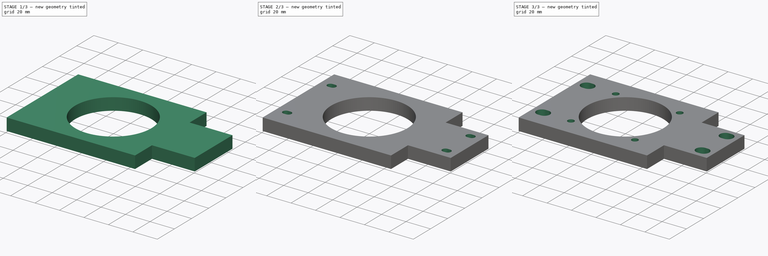
[diagram: build sequence overview — one tinted view per stage of 3, left to right]
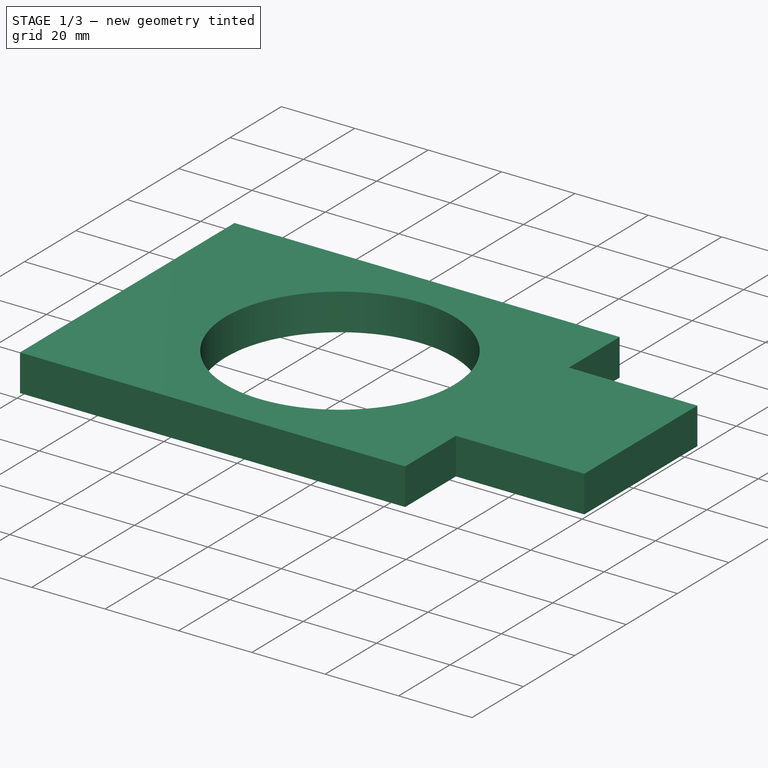
[diagram: stage 1 of 3 — iso view after this stage's code; geometry added in this stage tinted green]
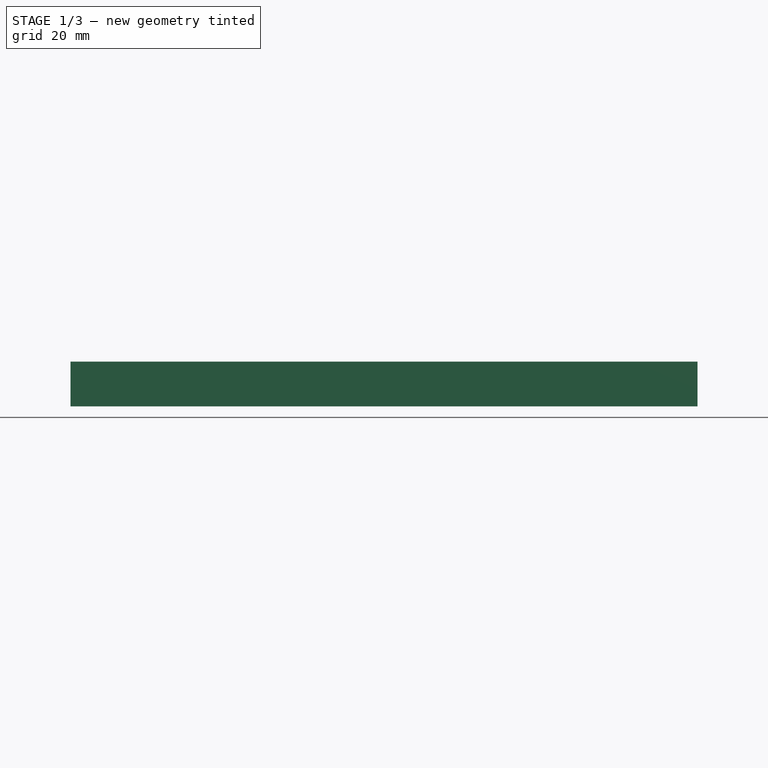
[diagram: stage 1 of 3 — front view after this stage's code; geometry added in this stage tinted green]
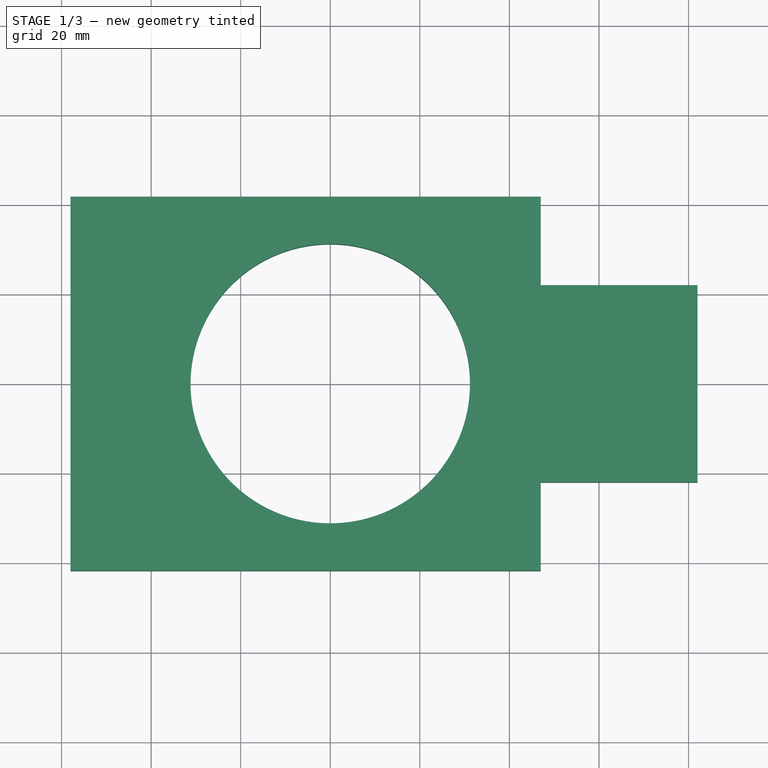
[diagram: stage 1 of 3 — top view after this stage's code; geometry added in this stage tinted green]
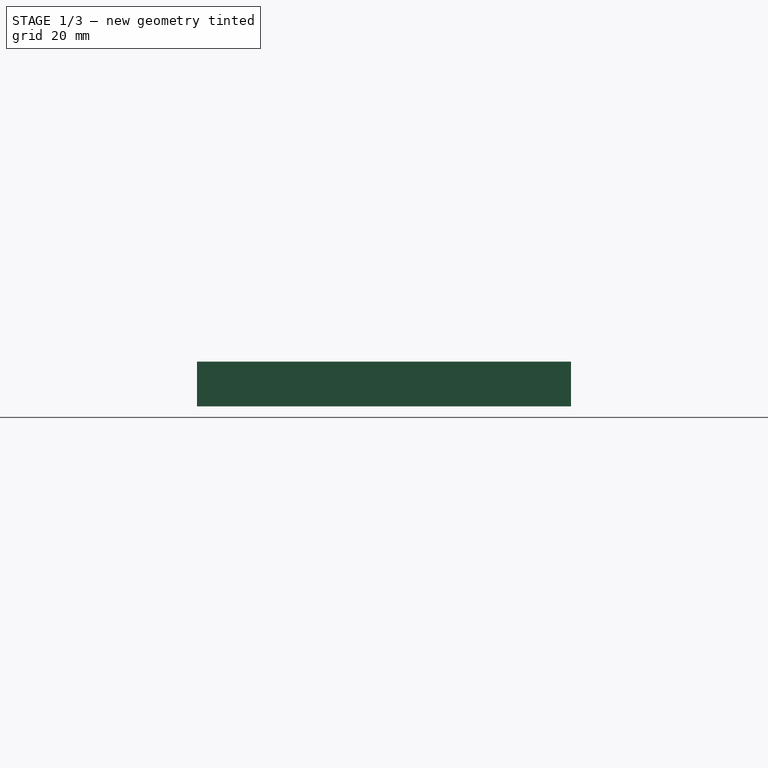
[diagram: stage 1 of 3 — right view after this stage's code; geometry added in this stage tinted green]
FCSTD DOCUMENT  (FreeCAD 0.16R4928 (Git))
Label: axis_side_sensor_holder
License: CC-BY 3.0
LicenseURL: http://creativecommons.org/licenses/by/3.0/
objects: Sketcher::SketchObject×8, PartDesign::Pocket×6, PartDesign::Fillet×4, PartDesign::Pad×2
note: 28 computed .brp shape members not serialized (recipe doc carries the construction recipe); baked Part::Feature solids carry a one-line shape summary decoded from their .brp

FEATURE [Sketcher::SketchObject] Sketch003
  sketch-geometry (16):
    g0: Circle [constr] CenterX=0 CenterY=0 CenterZ=0 NormalX=0 NormalY=0 NormalZ=1 Radius=37.5
    g1: Circle [constr] CenterX=0 CenterY=0 CenterZ=0 NormalX=0 NormalY=0 NormalZ=1 Radius=41.75
    g2: LineSegment [constr] StartX=37.5 StartY=-18 StartZ=0 EndX=37.5 EndY=18 EndZ=0
    g3: LineSegment [constr] StartX=37.5 StartY=18 StartZ=0 EndX=57 EndY=18 EndZ=0
    g4: LineSegment [constr] StartX=57 StartY=18 StartZ=0 EndX=57 EndY=-18 EndZ=0
    g5: LineSegment [constr] StartX=37.5 StartY=-18 StartZ=0 EndX=57 EndY=-18 EndZ=0
    g6: LineSegment StartX=-58 StartY=41.75 StartZ=0 EndX=47 EndY=41.75 EndZ=0
    g7: LineSegment StartX=47 StartY=-41.75 StartZ=0 EndX=-58 EndY=-41.75 EndZ=0
    g8: LineSegment StartX=-58 StartY=-41.75 StartZ=0 EndX=-58 EndY=41.75 EndZ=0
    g9: LineSegment StartX=82 StartY=22 StartZ=0 EndX=82 EndY=-22 EndZ=0
    g10: LineSegment [constr] StartX=47.25 StartY=18 StartZ=0 EndX=47.25 EndY=-18 EndZ=0
    g11: Circle [constr] CenterX=0 CenterY=0 CenterZ=0 NormalX=0 NormalY=0 NormalZ=1 Radius=31.2
    g12: LineSegment StartX=47 StartY=41.75 StartZ=0 EndX=47 EndY=22 EndZ=0
    g13: LineSegment StartX=47 StartY=22 StartZ=0 EndX=82 EndY=22 EndZ=0
    g14: LineSegment StartX=47 StartY=-41.75 StartZ=0 EndX=47 EndY=-22 EndZ=0
    g15: LineSegment StartX=47 StartY=-22 StartZ=0 EndX=82 EndY=-22 EndZ=0
  constraints (45):
    c: Coincident(g0,g-1)
    c: Radius(g0) = 37.5
    c: Coincident(g1,g-1)
    c: Radius(g1) = 41.75
    c: Coincident(g2,g3)
    c: Coincident(g3,g4)
    c: Perpendicular(g3,g2)
    c: Perpendicular(g3,g4)
    c: Coincident(g5,g2)
    c: Perpendicular(g5,g2)
    c: Coincident(g5,g4)
    c: Distance(g4) = 36
    c: Coincident(g7,g8)
    c: Coincident(g8,g6)
    c: Horizontal(g6)
    c: Horizontal(g7)
    c: Vertical(g8)
    c: Tangent(g7,g1)
    c: Tangent(g6,g1)
    c: Vertical(g9)
    c: DistanceX(g3) = 19.5
    c: PointOnObject(g10,g3)
    c: PointOnObject(g10,g5)
    c: Vertical(g10)
    c: Symmetric(g2,g3,g10)
    c: DistanceX(g-1,g10) = 47.25
    c: Symmetric(g3,g4,g-1)
    c: DistanceX(g-1,g6) = -58
    c: Coincident(g11,g-1)
    c: Radius(g11) = 31.2
    c: Vertical(g12)
    c: Coincident(g13,g12)
    c: Horizontal(g13)
    c: Vertical(g14)
    c: Coincident(g15,g14)
    c: Horizontal(g15)
    c: Coincident(g9,g13)
    c: Coincident(g6,g12)
    c: Coincident(g9,g15)
    c: Coincident(g7,g14)
    c: DistanceX(g-1,g9) = 82
    c: Symmetric(g9,g9,g-1)
    c: Symmetric(g14,g12,g-1)
    c: DistanceY(g9) = -44
    c: DistanceX(g15) = 35
FEATURE [PartDesign::Pad] Pad001  label="Main Axis Side"
  Length = 10
  Length2 = 100
  Sketch = -> Sketch003
  Type = 0
FEATURE [Sketcher::SketchObject] Sketch
  Placement = pos=(0,0,10) rot=(0,0,1;0rad)
  Support = -> Pad001 [Face10]
  sketch-geometry (1):
    g0: Circle CenterX=0 CenterY=0 CenterZ=0 NormalX=0 NormalY=0 NormalZ=1 Radius=31.2
  constraints (2):
    c: Coincident(g0,g-1)
    c: Radius(g0) = 31.2
FEATURE [PartDesign::Pocket] Pocket  label="Ball Bearing Housing"
  Length = 5
  Sketch = -> Sketch
  Type = 1
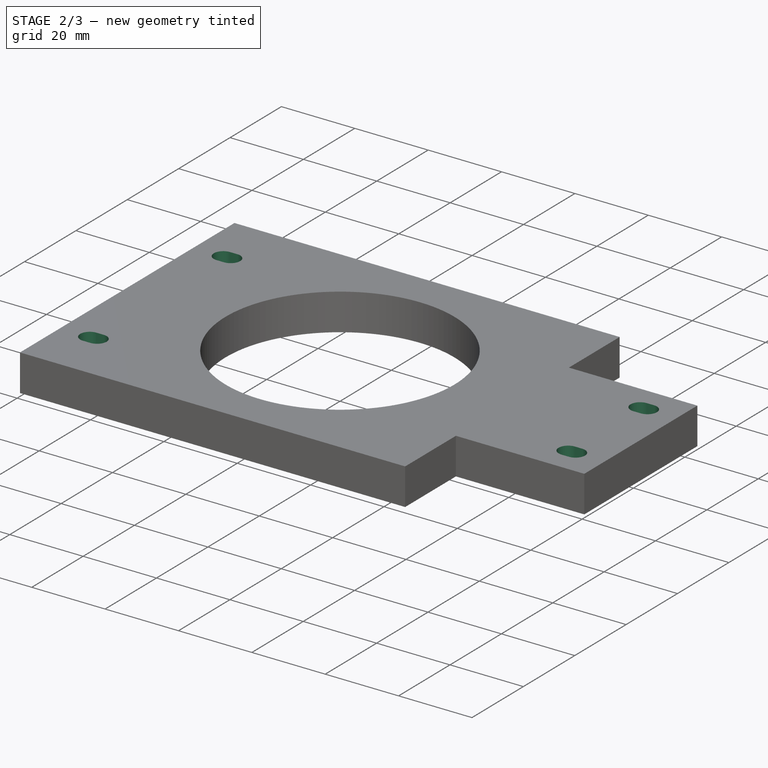
[diagram: stage 2 of 3 — iso view after this stage's code; geometry added in this stage tinted green]
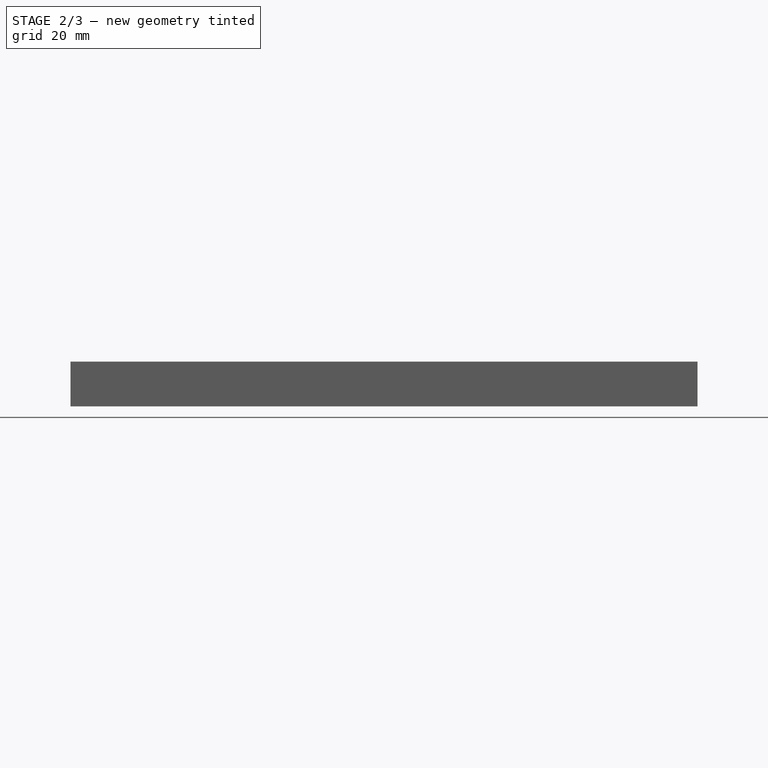
[diagram: stage 2 of 3 — front view after this stage's code; geometry added in this stage tinted green]
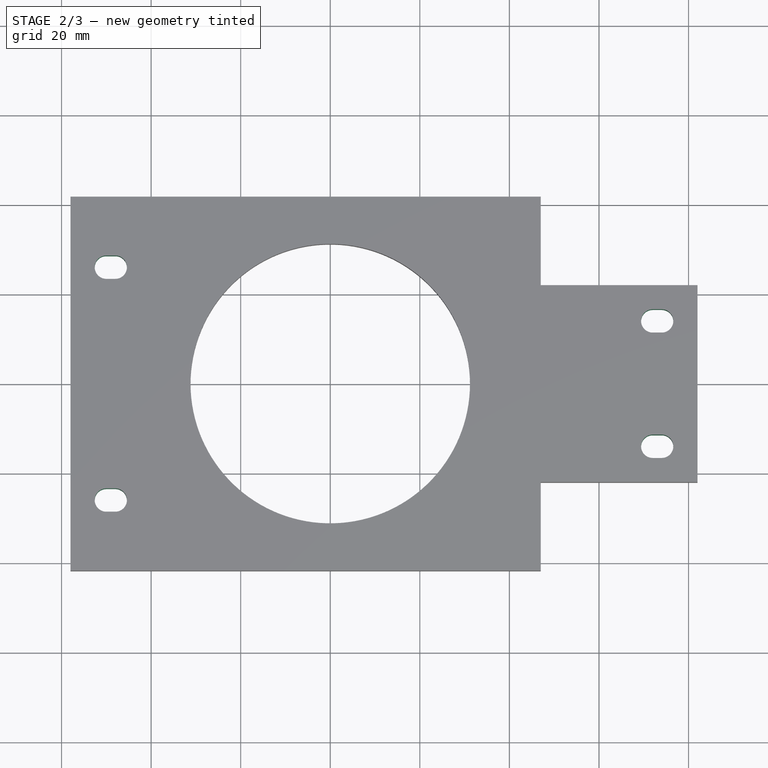
[diagram: stage 2 of 3 — top view after this stage's code; geometry added in this stage tinted green]
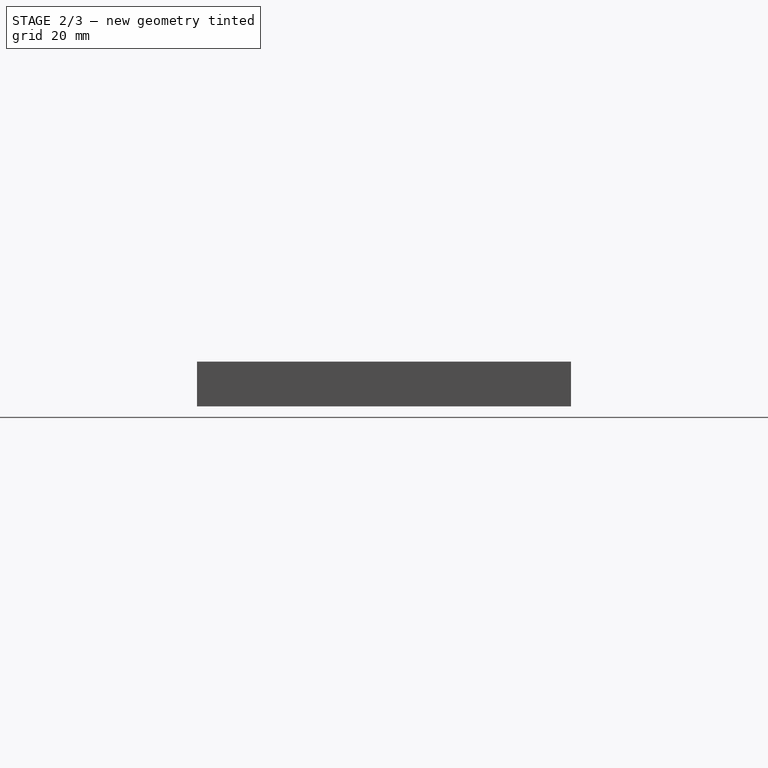
[diagram: stage 2 of 3 — right view after this stage's code; geometry added in this stage tinted green]
FEATURE [Sketcher::SketchObject] Sketch040
  ExternalGeometry = -> [Pocket]
  Placement = pos=(0,0,10) rot=(0,0,1;0rad)
  Support = -> Pocket [Face5]
  sketch-geometry (16):
    g0: ArcOfCircle CenterX=-50 CenterY=-26 CenterZ=0 NormalX=0 NormalY=0 NormalZ=1 Radius=2.6 StartAngle=1.5708 EndAngle=4.71239
    g1: ArcOfCircle CenterX=-48 CenterY=-26 CenterZ=0 NormalX=0 NormalY=0 NormalZ=1 Radius=2.6 StartAngle=4.71239 EndAngle=7.85398
    g2: LineSegment StartX=-50 StartY=-28.6 StartZ=0 EndX=-48 EndY=-28.6 EndZ=0
    g3: LineSegment StartX=-50 StartY=-23.4 StartZ=0 EndX=-48 EndY=-23.4 EndZ=0
    g4: ArcOfCircle CenterX=-50 CenterY=26 CenterZ=0 NormalX=0 NormalY=0 NormalZ=1 Radius=2.6 StartAngle=1.5708 EndAngle=4.71239
    g5: ArcOfCircle CenterX=-48 CenterY=26 CenterZ=0 NormalX=0 NormalY=0 NormalZ=1 Radius=2.6 StartAngle=4.71239 EndAngle=7.85398
    g6: LineSegment StartX=-50 StartY=23.4 StartZ=0 EndX=-48 EndY=23.4 EndZ=0
    g7: LineSegment StartX=-50 StartY=28.6 StartZ=0 EndX=-48 EndY=28.6 EndZ=0
    g8: ArcOfCircle CenterX=74 CenterY=14 CenterZ=0 NormalX=0 NormalY=0 NormalZ=1 Radius=2.6 StartAngle=4.71239 EndAngle=7.85398
    g9: ArcOfCircle CenterX=72 CenterY=14 CenterZ=0 NormalX=0 NormalY=0 NormalZ=1 Radius=2.6 StartAngle=1.5708 EndAngle=4.71239
    g10: LineSegment StartX=74 StartY=16.6 StartZ=0 EndX=72 EndY=16.6 EndZ=0
    g11: LineSegment StartX=74 StartY=11.4 StartZ=0 EndX=72 EndY=11.4 EndZ=0
    g12: ArcOfCircle CenterX=74 CenterY=-14 CenterZ=0 NormalX=0 NormalY=0 NormalZ=1 Radius=2.6 StartAngle=4.71239 EndAngle=7.85398
    g13: ArcOfCircle CenterX=72 CenterY=-14 CenterZ=0 NormalX=0 NormalY=0 NormalZ=1 Radius=2.6 StartAngle=1.5708 EndAngle=4.71239
    g14: LineSegment StartX=74 StartY=-11.4 StartZ=0 EndX=72 EndY=-11.4 EndZ=0
    g15: LineSegment StartX=74 StartY=-16.6 StartZ=0 EndX=72 EndY=-16.6 EndZ=0
  constraints (38):
    c: Tangent(g0,g3) = 1.5708
    c: Tangent(g0,g2) = -1.5708
    c: Tangent(g2,g1) = -1.5708
    c: Tangent(g3,g1) = 1.5708
    c: Horizontal(g2)
    c: Equal(g0,g1)
    c: Radius(g1) = 2.6
    c: Tangent(g4,g7) = 1.5708
    c: Tangent(g4,g6) = -1.5708
    c: Tangent(g6,g5) = -1.5708
    c: Tangent(g7,g5) = 1.5708
    c: Horizontal(g6)
    c: Equal(g4,g5)
    c: Equal(g4,g1)
    c: DistanceX(g4,g5) = 2
    c: Symmetric(g5,g1,g-1)
    c: DistanceY(g-1,g4) = 26
    c: Tangent(g8,g11) = 1.5708
    c: Tangent(g8,g10) = -1.5708
    c: Tangent(g10,g9) = -1.5708
    c: Tangent(g11,g9) = 1.5708
    c: Horizontal(g10)
    c: Equal(g8,g9)
    c: Tangent(g12,g15) = 1.5708
    c: Tangent(g12,g14) = -1.5708
    c: Tangent(g14,g13) = -1.5708
    c: Tangent(g15,g13) = 1.5708
    c: Horizontal(g14)
    c: Equal(g12,g13)
    c: Symmetric(g8,g12,g-1)
    c: Equal(g8,g12)
    c: Equal(g12,g1)
    c: DistanceY(g-1,g8) = 14
    c: DistanceX(g9,g8) = 2
    c: Symmetric(g13,g9,g-1)
    c: Symmetric(g4,g0,g-1)
    c: DistanceX(g5,g-4) = -10
    c: DistanceX(g8,g-3) = 8
FEATURE [PartDesign::Pocket] Pocket001  label="M5Holes"
  Length = 5
  Sketch = -> Sketch040
  Type = 1
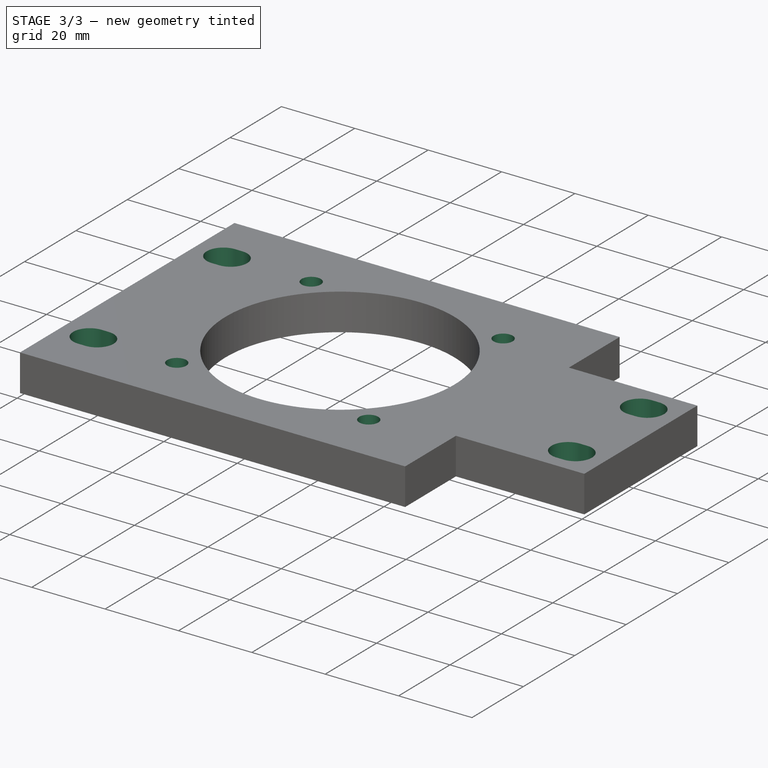
[diagram: stage 3 of 3 — iso view after this stage's code; geometry added in this stage tinted green]
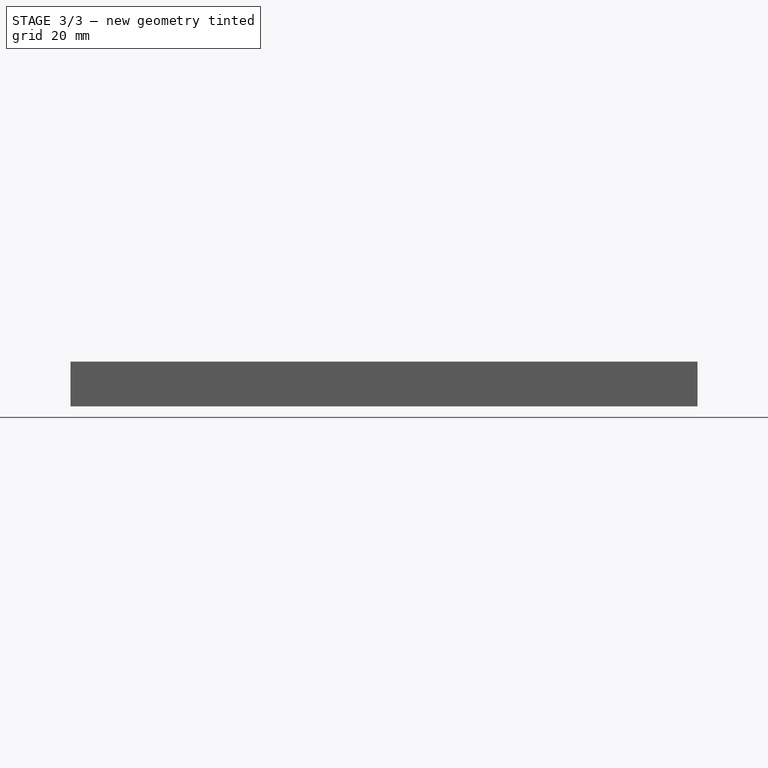
[diagram: stage 3 of 3 — front view after this stage's code; geometry added in this stage tinted green]
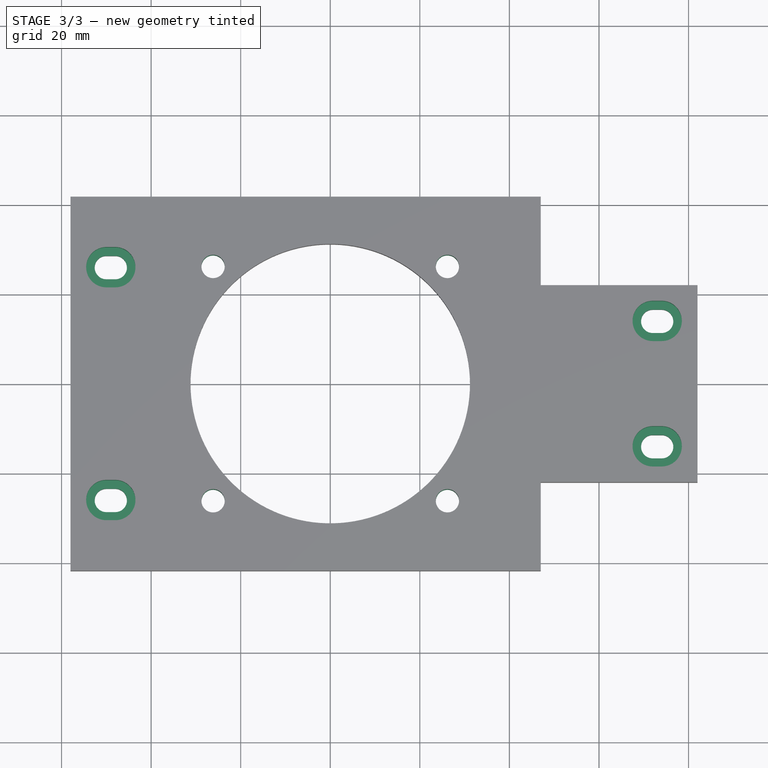
[diagram: stage 3 of 3 — top view after this stage's code; geometry added in this stage tinted green]
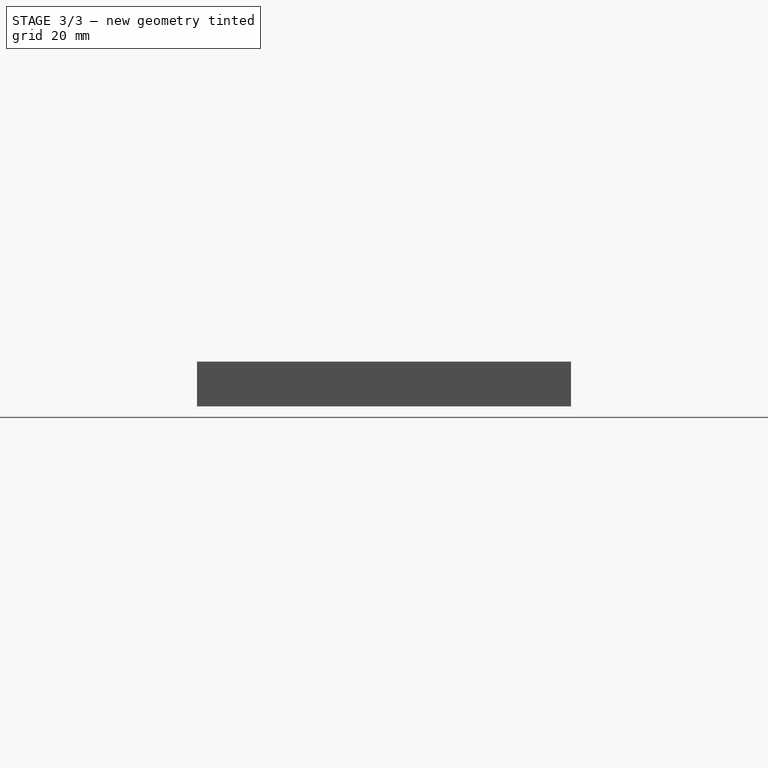
[diagram: stage 3 of 3 — right view after this stage's code; geometry added in this stage tinted green]
FEATURE [Sketcher::SketchObject] Sketch043
  Placement = pos=(0,0,10) rot=(0,0,1;0rad)
  Support = -> Pocket001 [Face5]
  sketch-geometry (5):
    g0: Circle CenterX=26.163 CenterY=-26.163 CenterZ=0 NormalX=0 NormalY=0 NormalZ=1 Radius=2.6
    g1: Circle CenterX=26.163 CenterY=26.163 CenterZ=0 NormalX=0 NormalY=0 NormalZ=1 Radius=2.6
    g2: Circle CenterX=-26.163 CenterY=26.163 CenterZ=0 NormalX=0 NormalY=0 NormalZ=1 Radius=2.6
    g3: Circle CenterX=-26.163 CenterY=-26.163 CenterZ=0 NormalX=0 NormalY=0 NormalZ=1 Radius=2.6
    g4: LineSegment [constr] StartX=0 StartY=0 StartZ=0 EndX=26.163 EndY=26.163 EndZ=0
  constraints (11):
    c: Equal(g2,g3)
    c: Equal(g3,g0)
    c: Equal(g0,g1)
    c: Radius(g1) = 2.6
    c: Coincident(g4,g-1)
    c: Coincident(g4,g1)
    c: Angle(g-1,g4) = 0.785398
    c: Symmetric(g1,g0,g-1)
    c: Symmetric(g1,g2,g-2)
    c: Distance(g4) = 37
    c: Symmetric(g2,g3,g-1)
FEATURE [PartDesign::Pocket] Pocket002  label="M5HolesBallBearingHousing"
  Length = 5
  Sketch = -> Sketch043
  Type = 1
FEATURE [Sketcher::SketchObject] Sketch044
  ExternalGeometry = -> [Pocket002]
  Placement = pos=(0,0,10) rot=(0,0,1;0rad)
  Support = -> Pocket002 [Face5]
  sketch-geometry (16):
    g0: ArcOfCircle CenterX=-48 CenterY=26 CenterZ=0 NormalX=0 NormalY=0 NormalZ=1 Radius=4.5 StartAngle=4.71239 EndAngle=7.85398
    g1: ArcOfCircle CenterX=-50 CenterY=26 CenterZ=0 NormalX=0 NormalY=0 NormalZ=1 Radius=4.5 StartAngle=1.5708 EndAngle=4.71239
    g2: LineSegment StartX=-48 StartY=30.5 StartZ=0 EndX=-50 EndY=30.5 EndZ=0
    g3: LineSegment StartX=-48 StartY=21.5 StartZ=0 EndX=-50 EndY=21.5 EndZ=0
    g4: ArcOfCircle CenterX=-50 CenterY=-26 CenterZ=0 NormalX=0 NormalY=0 NormalZ=1 Radius=4.5 StartAngle=1.5708 EndAngle=4.71239
    g5: ArcOfCircle CenterX=-48 CenterY=-26 CenterZ=0 NormalX=0 NormalY=0 NormalZ=1 Radius=4.5 StartAngle=4.71239 EndAngle=7.85398
    g6: LineSegment StartX=-50 StartY=-30.5 StartZ=0 EndX=-48 EndY=-30.5 EndZ=0
    g7: LineSegment StartX=-50 StartY=-21.5 StartZ=0 EndX=-48 EndY=-21.5 EndZ=0
    g8: ArcOfCircle CenterX=74 CenterY=14 CenterZ=0 NormalX=0 NormalY=0 NormalZ=1 Radius=4.5 StartAngle=4.71239 EndAngle=7.85398
    g9: ArcOfCircle CenterX=72 CenterY=14 CenterZ=0 NormalX=0 NormalY=0 NormalZ=1 Radius=4.5 StartAngle=1.5708 EndAngle=4.71239
    g10: LineSegment StartX=74 StartY=18.5 StartZ=0 EndX=72 EndY=18.5 EndZ=0
    g11: LineSegment StartX=74 StartY=9.5 StartZ=0 EndX=72 EndY=9.5 EndZ=0
    g12: ArcOfCircle CenterX=74 CenterY=-14 CenterZ=0 NormalX=0 NormalY=0 NormalZ=1 Radius=4.5 StartAngle=4.71239 EndAngle=7.85398
    g13: ArcOfCircle CenterX=72 CenterY=-14 CenterZ=0 NormalX=0 NormalY=0 NormalZ=1 Radius=4.5 StartAngle=1.5708 EndAngle=4.71239
    g14: LineSegment StartX=74 StartY=-9.5 StartZ=0 EndX=72 EndY=-9.5 EndZ=0
    g15: LineSegment StartX=74 StartY=-18.5 StartZ=0 EndX=72 EndY=-18.5 EndZ=0
  constraints (34):
    c: Tangent(g0,g3) = 1.5708
    c: Tangent(g0,g2) = -1.5708
    c: Tangent(g2,g1) = -1.5708
    c: Tangent(g3,g1) = 1.5708
    c: Horizontal(g2)
    c: Coincident(g0,g-3)
    c: Coincident(g1,g-4)
    c: Radius(g0) = 4.5
    c: Tangent(g4,g7) = 1.5708
    c: Tangent(g4,g6) = -1.5708
    c: Tangent(g6,g5) = -1.5708
    c: Tangent(g7,g5) = 1.5708
    c: Horizontal(g6)
    c: Equal(g4,g5)
    c: Symmetric(g5,g0,g-1)
    c: Equal(g5,g0)
    c: Symmetric(g4,g1,g-1)
    c: Tangent(g8,g11) = 1.5708
    c: Tangent(g8,g10) = -1.5708
    c: Tangent(g10,g9) = -1.5708
    c: Tangent(g11,g9) = 1.5708
    c: Horizontal(g10)
    c: Coincident(g8,g-5)
    c: Equal(g8,g0)
    c: Coincident(g9,g-6)
    c: Tangent(g12,g15) = 1.5708
    c: Tangent(g12,g14) = -1.5708
    c: Tangent(g14,g13) = -1.5708
    c: Tangent(g15,g13) = 1.5708
    c: Horizontal(g14)
    c: Equal(g12,g13)
    c: Equal(g12,g8)
    c: Symmetric(g12,g8,g-1)
    c: Symmetric(g13,g9,g-1)
FEATURE [PartDesign::Pocket] Pocket003  label="M5HolesCountersink"
  Length = 5.5
  Sketch = -> Sketch044
  Type = 0
FEATURE [Sketcher::SketchObject] Sketch045
  ExternalGeometry = -> [Fillet003]
  Placement = pos=(0,0,10) rot=(0,0,1;0rad)
  Support = -> Fillet003 [Face6]
  sketch-geometry (32):
    g0: LineSegment StartX=-21.7197 StartY=24.9724 StartZ=0 EndX=-22.9103 EndY=29.4156 EndZ=0
    g1: LineSegment StartX=-22.9103 StartY=29.4156 StartZ=0 EndX=-27.3535 EndY=30.6062 EndZ=0
    g2: LineSegment StartX=-27.3535 StartY=30.6062 StartZ=0 EndX=-30.6062 EndY=27.3535 EndZ=0
    g3: LineSegment StartX=-30.6062 StartY=27.3535 StartZ=0 EndX=-29.4156 EndY=22.9103 EndZ=0
    g4: LineSegment StartX=-29.4156 StartY=22.9103 StartZ=0 EndX=-24.9724 EndY=21.7197 EndZ=0
    g5: LineSegment StartX=-24.9724 StartY=21.7197 StartZ=0 EndX=-21.7197 EndY=24.9724 EndZ=0
    g6: LineSegment StartX=27.3535 StartY=30.6062 StartZ=0 EndX=22.9103 EndY=29.4156 EndZ=0
    g7: LineSegment StartX=22.9103 StartY=29.4156 StartZ=0 EndX=21.7197 EndY=24.9724 EndZ=0
    g8: LineSegment StartX=21.7197 StartY=24.9724 StartZ=0 EndX=24.9724 EndY=21.7197 EndZ=0
    g9: LineSegment StartX=24.9724 StartY=21.7197 StartZ=0 EndX=29.4156 EndY=22.9103 EndZ=0
    g10: LineSegment StartX=29.4156 StartY=22.9103 StartZ=0 EndX=30.6062 EndY=27.3535 EndZ=0
    g11: LineSegment StartX=30.6062 StartY=27.3535 StartZ=0 EndX=27.3535 EndY=30.6062 EndZ=0
    g12: Circle [constr] CenterX=26.163 CenterY=26.163 CenterZ=0 NormalX=0 NormalY=0 NormalZ=1 Radius=4.6
    g13: Circle [constr] CenterX=-26.163 CenterY=26.163 CenterZ=0 NormalX=0 NormalY=0 NormalZ=1 Radius=4.6
    g14: LineSegment StartX=-22.9103 StartY=-29.4156 StartZ=0 EndX=-21.7197 EndY=-24.9724 EndZ=0
    g15: LineSegment StartX=-21.7197 StartY=-24.9724 StartZ=0 EndX=-24.9724 EndY=-21.7197 EndZ=0
    g16: LineSegment StartX=-24.9724 StartY=-21.7197 StartZ=0 EndX=-29.4156 EndY=-22.9103 EndZ=0
    g17: LineSegment StartX=-29.4156 StartY=-22.9103 StartZ=0 EndX=-30.6062 EndY=-27.3535 EndZ=0
    g18: LineSegment StartX=-30.6062 StartY=-27.3535 StartZ=0 EndX=-27.3535 EndY=-30.6062 EndZ=0
    g19: LineSegment StartX=-27.3535 StartY=-30.6062 StartZ=0 EndX=-22.9103 EndY=-29.4156 EndZ=0
    g20: Circle [constr] CenterX=-26.163 CenterY=-26.163 CenterZ=0 NormalX=0 NormalY=0 NormalZ=1 Radius=4.6
    g21: LineSegment StartX=30.6062 StartY=-27.3535 StartZ=0 EndX=29.4156 EndY=-22.9103 EndZ=0
    g22: LineSegment StartX=29.4156 StartY=-22.9103 StartZ=0 EndX=24.9724 EndY=-21.7197 EndZ=0
    g23: LineSegment StartX=24.9724 StartY=-21.7197 StartZ=0 EndX=21.7197 EndY=-24.9724 EndZ=0
    g24: LineSegment StartX=21.7197 StartY=-24.9724 StartZ=0 EndX=22.9103 EndY=-29.4156 EndZ=0
    g25: LineSegment StartX=22.9103 StartY=-29.4156 StartZ=0 EndX=27.3535 EndY=-30.6062 EndZ=0
    g26: LineSegment StartX=27.3535 StartY=-30.6062 StartZ=0 EndX=30.6062 EndY=-27.3535 EndZ=0
    g27: Circle [constr] CenterX=26.163 CenterY=-26.163 CenterZ=0 NormalX=0 NormalY=0 NormalZ=1 Radius=4.6
    g28: LineSegment [constr] StartX=-26.163 StartY=26.163 StartZ=0 EndX=0 EndY=0 EndZ=0
    g29: LineSegment [constr] StartX=26.163 StartY=26.163 StartZ=0 EndX=0 EndY=0 EndZ=0
    g30: LineSegment [constr] StartX=0 StartY=0 StartZ=0 EndX=-26.163 EndY=-26.163 EndZ=0
    g31: LineSegment [constr] StartX=0 StartY=0 StartZ=0 EndX=26.163 EndY=-26.163 EndZ=0
  constraints (72):
    c: Coincident(g0,g1)
    c: Coincident(g1,g2)
    c: Coincident(g2,g3)
    c: Coincident(g3,g4)
    c: Coincident(g4,g5)
    c: Coincident(g5,g0)
    c: Equal(g0, g1-g5) x5
    c: Coincident(g6,g7)
    c: Coincident(g7,g8)
    c: Coincident(g8,g9)
    c: Coincident(g9,g10)
    c: Coincident(g10,g11)
    c: Coincident(g11,g6)
    c: Equal(g6, g7-g11) x5
    c: PointOnObject(g6,g12)
    c: PointOnObject(g7,g12)
    c: PointOnObject(g8,g12)
    c: PointOnObject(g9,g12)
    c: PointOnObject(g10,g12)
    c: PointOnObject(g11,g12)
    c: PointOnObject(g0,g13)
    c: Radius(g13) = 4.6
    c: PointOnObject(g4,g13)
    c: PointOnObject(g3,g13)
    c: PointOnObject(g2,g13)
    c: PointOnObject(g0,g13)
    c: Symmetric(g13,g12,g-2)
    c: Equal(g12,g13)
    c: Coincident(g14,g15)
    c: Coincident(g15,g16)
    c: Coincident(g16,g17)
    c: Coincident(g17,g18)
    c: Coincident(g18,g19)
    c: Coincident(g19,g14)
    c: Equal(g14, g15-g19) x5
    c: PointOnObject(g14,g20)
    c: PointOnObject(g15,g20)
    c: PointOnObject(g16,g20)
    c: PointOnObject(g17,g20)
    c: PointOnObject(g18,g20)
    c: PointOnObject(g19,g20)
    c: Equal(g20,g13)
    c: Symmetric(g20,g13,g-1)
    c: Coincident(g21,g22)
    c: Coincident(g22,g23)
    c: Coincident(g23,g24)
    c: Coincident(g24,g25)
    c: Coincident(g25,g26)
    c: Coincident(g26,g21)
    c: Equal(g21, g22-g26) x5
    c: PointOnObject(g21,g27)
    c: PointOnObject(g22,g27)
    c: PointOnObject(g23,g27)
    c: PointOnObject(g24,g27)
    c: PointOnObject(g25,g27)
    c: PointOnObject(g26,g27)
    c: Equal(g27,g13)
    c: Symmetric(g27,g12,g-1)
    c: PointOnObject(g1,g13)
    c: Coincident(g28,g13)
    c: Coincident(g28,g-1)
    c: Perpendicular(g5,g28)
    c: Coincident(g29,g12)
    c: Coincident(g29,g-1)
    c: Perpendicular(g29,g8)
    c: Coincident(g30,g-1)
    c: Coincident(g30,g20)
    c: Perpendicular(g15,g30)
    c: Coincident(g31,g-1)
    c: Coincident(g31,g27)
    c: Perpendicular(g23,g31)
    c: Coincident(g12,g-3)
FEATURE [PartDesign::Pocket] Pocket004  label="M5NutCountersink"
  Length = 4.2
  Sketch = -> Sketch045
  Type = 0
FEATURE [Sketcher::SketchObject] Sketch046
  Placement = pos=(0,0,10) rot=(0,0,1;0rad)
  Support = -> Pocket004 [Face5]
  sketch-geometry (4):
    g0: LineSegment StartX=-42 StartY=6.5 StartZ=0 EndX=-48 EndY=6.5 EndZ=0
    g1: LineSegment StartX=-48 StartY=-6.5 StartZ=0 EndX=-42 EndY=-6.5 EndZ=0
    g2: LineSegment StartX=-48 StartY=6.5 StartZ=0 EndX=-48 EndY=-6.5 EndZ=0
    g3: LineSegment StartX=-42 StartY=6.5 StartZ=0 EndX=-42 EndY=-6.5 EndZ=0
  constraints (11):
    c: Horizontal(g0)
    c: Horizontal(g1)
    c: Symmetric(g0,g1,g-1)
    c: DistanceX(g0) = -6
    c: DistanceX(g-1,g0) = -42
    c: Symmetric(g0,g1,g-1)
    c: Coincident(g2,g0)
    c: Coincident(g2,g1)
    c: Coincident(g3,g0)
    c: Coincident(g3,g1)
    c: DistanceY(g0,g1) = -13
FEATURE [PartDesign::Pad] Pad  label="HomingSensorPad"
  Length = 10
  Length2 = 100
  Sketch = -> Sketch046
  Type = 0
FEATURE [Sketcher::SketchObject] Sketch048
  ExternalGeometry = -> [Pad]
  Placement = pos=(-48,0,0) rot=(0.57735,-0.57735,-0.57735;2.0944rad)
  Support = -> Pad [Face71]
  sketch-geometry (1):
    g0: Circle CenterX=0 CenterY=16 CenterZ=0 NormalX=0 NormalY=0 NormalZ=1 Radius=1.6
  constraints (3):
    c: PointOnObject(g0,g-2)
    c: Radius(g0) = 1.6
    c: DistanceY(g-3,g0) = 6
FEATURE [PartDesign::Pocket] Pocket005  label="M3 Hole"
  Length = 5
  Sketch = -> Sketch048
  Type = 2
FEATURE [PartDesign::Fillet] Fillet
  Base = -> Pocket005 [Edge2,Edge1,Edge87,Edge89,Edge88,Edge8]
  Radius = 5
FEATURE [PartDesign::Fillet] Fillet001
  Base = -> Fillet [Edge99,Edge108]
  Radius = 2
FEATURE [PartDesign::Fillet] Fillet002
  Base = -> Fillet001 [Edge150,Edge151,Edge148]
  Radius = 4
FEATURE [PartDesign::Fillet] Fillet003
  Base = -> Fillet002 [Edge192,Edge191,Edge189]
  Radius = 1
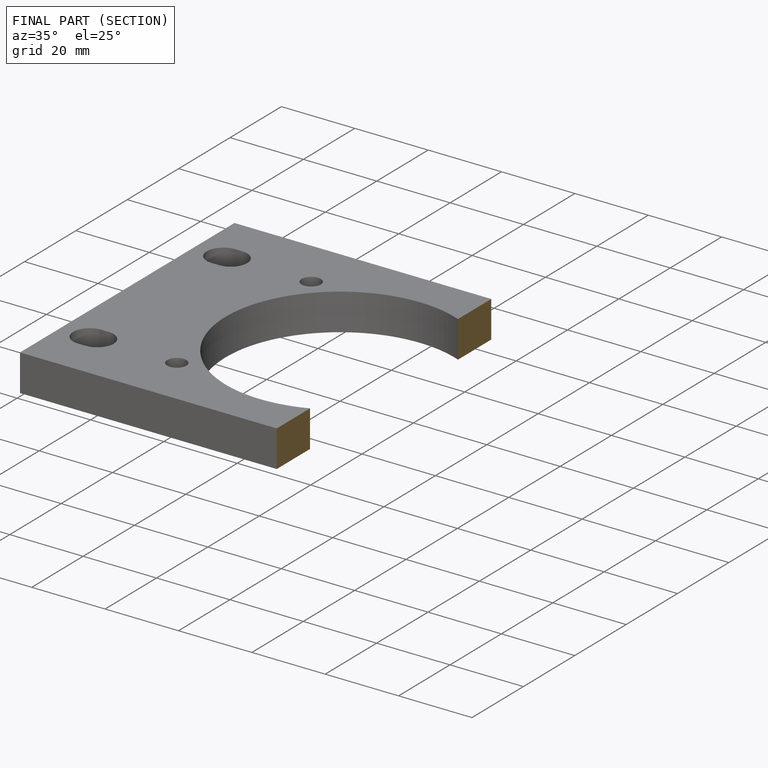
[diagram: finished part — half-section view (interior)]
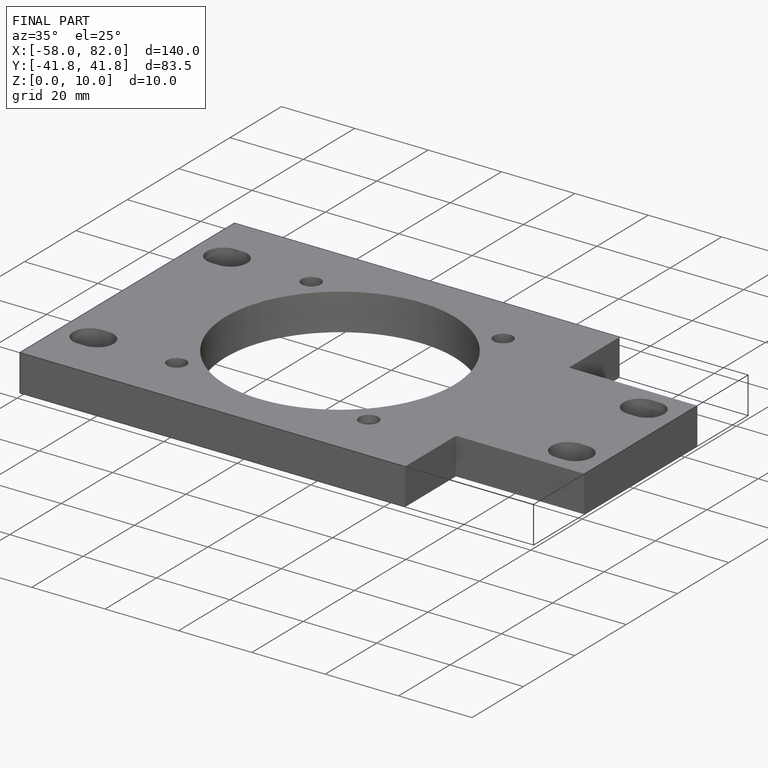
[diagram: finished part — iso view with bounding-box wireframe]
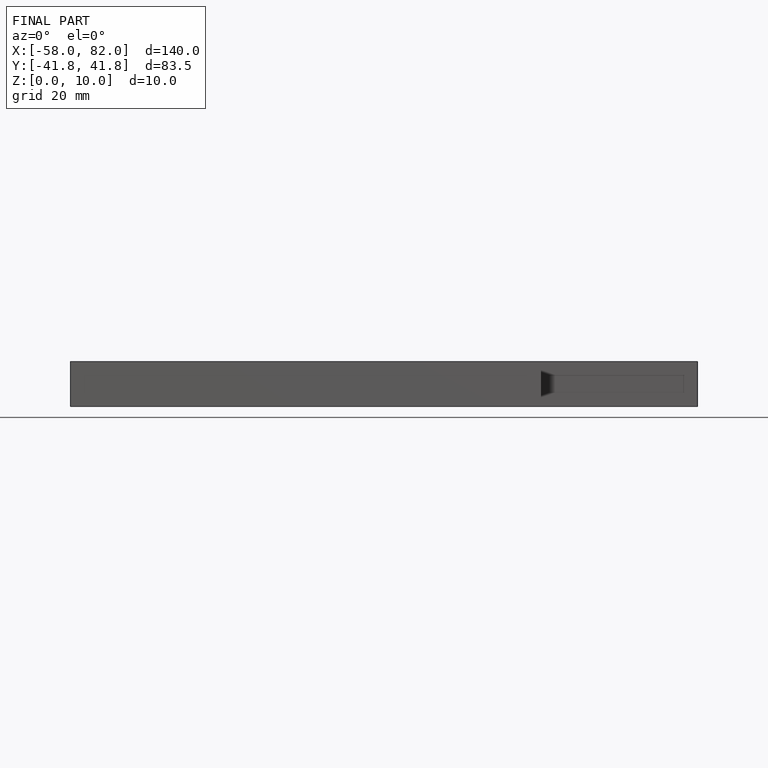
[diagram: finished part — front view with bounding-box wireframe]
